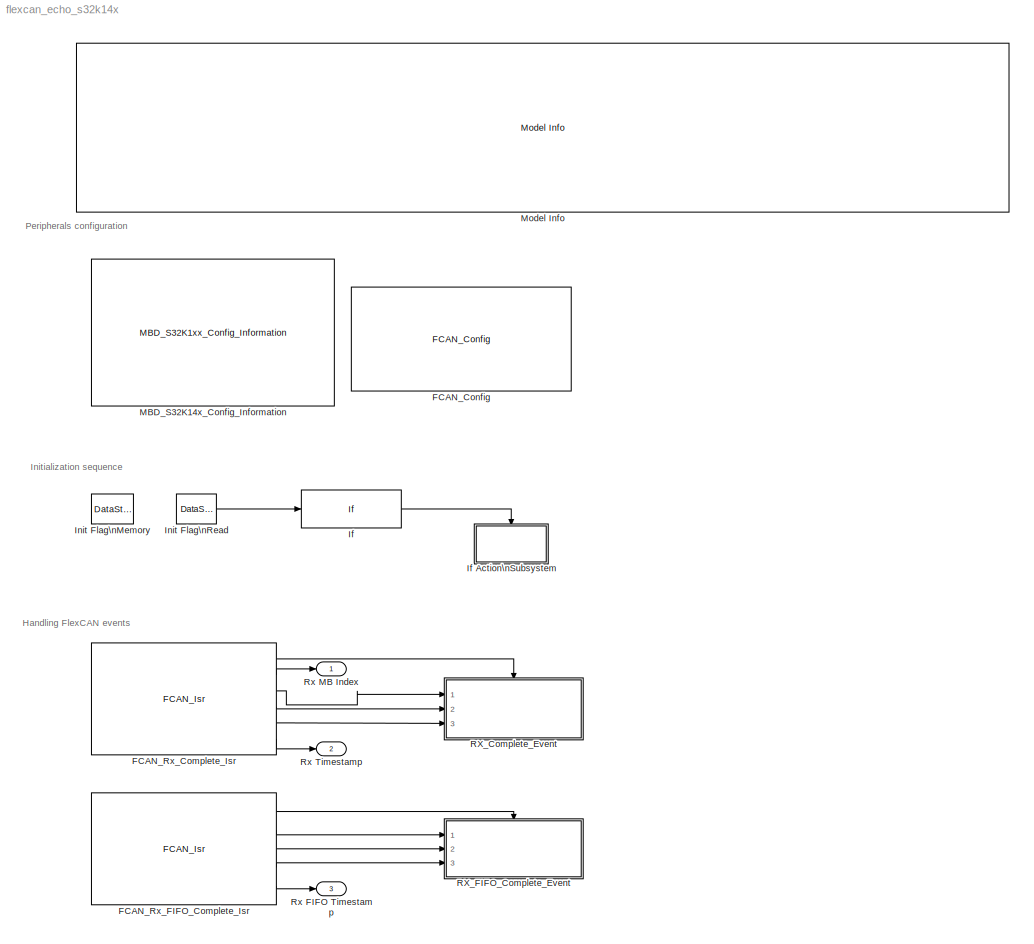
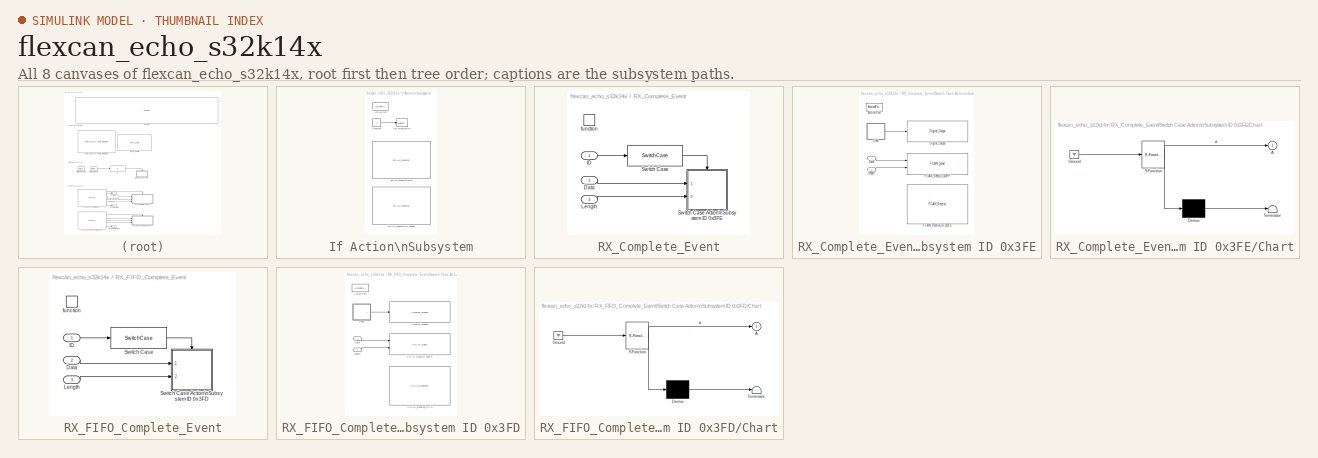
[diagram: thumbnail index - all 8 canvases of the model, root first then tree order]
MODEL flexcan_echo_s32k14x
KIND model
CONFIG InitFcn = mbd_s32k_consistency_checks(bdroot(gcs));
BLOCK [Reference] FCAN_Config  REF=mbd_s32k1xx_ec_toolbox/Communication Blocks/CAN Blocks/FCAN_Config
  MultiThreadCoSim = auto
  Ports = []
  Priority = 1
  SID = 2
  SourceBlock = mbd_s32k1xx_ec_toolbox/Communication Blocks/CAN Blocks/FCAN_Config
  SourceType = fcan_s32k_config
  bitrate = 500
  bitrate_adv_opts = off
  can_cbt_presdiv = 9
  can_cbt_propseg = 6
  can_cbt_pseg1 = 3
  can_cbt_pseg2 = 3
  can_cbt_rjw = 0
  can_clk_src = Peripheral clock
  can_fd_enable = off
  can_fifo_id_filter = {'0x3FD', '0x0', '0x0', '0x0', '0x0', '0x0', '0x0', '0x0'}
  can_fifo_id_filter_extended = off
  can_fifo_id_filter_remote = off
  can_fifo_id_format = A
  can_idfilter_extendedid = off
  can_idfilter_id1 = 0
  can_idfilter_id2 = 0
  can_idfilter_remoteframe = off
  can_idfilter_type = Match exact
  can_instance = 0
  can_match_timeout = 1
  can_max_num_mb = 16
  can_mode = Normal mode
  can_multiple_matches_en = off
  can_num_id_filters = 8
  can_num_matches = 1
  can_payload = 8
  can_payloadfilter_dlchigh = 0
  can_payloadfilter_dlclow = 0
  can_payloadfilter_enable = off
  can_payloadfilter_payload1_b0 = 0
  can_payloadfilter_payload1_b1 = 0
  can_payloadfilter_payload1_b2 = 0
  can_payloadfilter_payload1_b3 = 0
  can_payloadfilter_payload1_b4 = 0
  can_payloadfilter_payload1_b5 = 0
  can_payloadfilter_payload1_b6 = 0
  can_payloadfilter_payload1_b7 = 0
  can_payloadfilter_payload2_b0 = 0
  can_payloadfilter_payload2_b1 = 0
  can_payloadfilter_payload2_b2 = 0
  can_payloadfilter_payload2_b3 = 0
  can_payloadfilter_payload2_b4 = 0
  can_payloadfilter_payload2_b5 = 0
  can_payloadfilter_payload2_b6 = 0
  can_payloadfilter_payload2_b7 = 0
  can_payloadfilter_type = Match exact
  can_pn_enable = off
  can_presdiv = 7
  can_propseg = 7
  can_pseg1 = 6
  can_pseg2 = 3
  can_rjw = 3
  can_rx = PTE4: [CAN0_RX | CAN Rx channel]
  can_rxfifo_enable = on
  can_timeout_en = off
  can_tx = PTE5: [CAN0_TX | CAN Tx Channel]
  can_wakeup_match = off
  can_wakeup_timeout = off
  show_adv_opts = on
BLOCK [Reference] FCAN_Rx_Complete_Isr  REF=mbd_s32k1xx_ec_toolbox/Communication Blocks/CAN Blocks/FCAN_Isr
  MultiThreadCoSim = auto
  Ports = [0, 6]
  SID = 86
  SourceBlock = mbd_s32k1xx_ec_toolbox/Communication Blocks/CAN Blocks/FCAN_Isr
  SourceType = fcan_s32k_isr
  can_event = Rx Complete
  can_instance = 0
BLOCK [Reference] FCAN_Rx_FIFO_Complete_Isr  REF=mbd_s32k1xx_ec_toolbox/Communication Blocks/CAN Blocks/FCAN_Isr
  MultiThreadCoSim = auto
  Ports = [0, 5]
  SID = 438
  SourceBlock = mbd_s32k1xx_ec_toolbox/Communication Blocks/CAN Blocks/FCAN_Isr
  SourceType = fcan_s32k_isr
  can_event = Rx FIFO Complete
  can_instance = 0
BLOCK [If] If
  IfExpression = u1 == 0
  Ports = [1, 1]
  SID = 144
  ShowElse = off
BLOCK [SubSystem] If Action\nSubsystem
  Ports = [0, 0, 0, 0, 0, 0, 0, 1]
  RequestExecContextInheritance = off
  SID = 145
  TreatAsAtomicUnit = on
BLOCK [ActionPort] If Action\nSubsystem/Action Port
  SID = 147
BLOCK [Constant] If Action\nSubsystem/Constant
  OutDataTypeStr = uint32
  SID = 142
BLOCK [Reference] If Action\nSubsystem/FCAN_Receive_FIFO  REF=mbd_s32k1xx_ec_toolbox/Communication Blocks/CAN Blocks/FCAN_Receive
  MultiThreadCoSim = auto
  Ports = []
  SID = 194
  SourceBlock = mbd_s32k1xx_ec_toolbox/Communication Blocks/CAN Blocks/FCAN_Receive
  SourceType = fcan_s32k_receive
  can_extended_id = off
  can_fd_enable = off
  can_id = 0
  can_instance = 0
  can_is_remote = off
  can_mb_idx = 0
  can_mode = Non-blocking
  can_msg_mask = 0
  can_timeout_ms = 0
  can_use_rxfifo = on
  show_adv_opts = on
BLOCK [Reference] If Action\nSubsystem/FCAN_Receive_ID_0x3FE  REF=mbd_s32k1xx_ec_toolbox/Communication Blocks/CAN Blocks/FCAN_Receive
  MultiThreadCoSim = auto
  Ports = []
  SID = 197
  SourceBlock = mbd_s32k1xx_ec_toolbox/Communication Blocks/CAN Blocks/FCAN_Receive
  SourceType = fcan_s32k_receive
  can_extended_id = off
  can_fd_enable = off
  can_id = 3FE
  can_instance = 0
  can_is_remote = off
  can_mb_idx = 14
  can_mode = Non-blocking
  can_msg_mask = FFFFFFFF
  can_timeout_ms = 0
  can_use_rxfifo = off
  show_adv_opts = off
BLOCK [DataStoreWrite] If Action\nSubsystem/Init Flag\nWrite
  DataStoreName = init_flag
  Ports = [1]
  SID = 141
BLOCK [DataStoreMemory] Init Flag\nMemory
  DataStoreName = init_flag
  OutDataTypeStr = uint32
  ReadBeforeWriteMsg = warning
  SID = 138
  ShowAdditionalParam = off
  WriteAfterReadMsg = warning
  WriteAfterWriteMsg = warning
BLOCK [DataStoreRead] Init Flag\nRead
  DataStoreName = init_flag
  Ports = [0, 1]
  SID = 139
BLOCK [Reference] MBD_S32K14x_Config_Information  REF=mbd_s32k1xx_ec_toolbox/MBD_S32K1xx_Config_Information
  ADC_PcrCheckEnDis = on
  AMMCLIB_PcrCheckEnDis = on
  CMP_PcrCheckEnDis = on
  CSEc_PcrCheckEnDis = on
  ConfigParams_PcrCheckEnDis = on
  FM_PcrCheckEnDis = on
  FTM_Dual_Edge_Inputs_PcrCheckEnDis = on
  FTM_Hall_Sensor_Inputs_PcrCheckEnDis = on
  FTM_Input_Edge_Inputs_PcrCheckEnDis = on
  FTM_PWM_PcrCheckEnDis = on
  FTM_Quadrature_Inputs_PcrCheckEnDis = on
  FlexCAN_PcrCheckEnDis = on
  FlexIO_PcrCheckEnDis = on
  GPIO_InputPcrCheckEnDis = on
  GPIO_OutputPcrCheckEnDis = on
  LIN_PcrCheckEnDis = on
  LPI2C_PcrCheckEnDis = on
  LPSPI_PcrCheckEnDis = on
  LPTMR_PcrCheckEnDis = on
  LPUART_PcrCheckEnDis = on
  ModelRef_PcrCheckEnDis = on
  MultiThreadCoSim = auto
  PDB0_PcrCheckEnDis = on
  PIT_PcrCheckEnDis = on
  Ports = []
  Profile_PcrCheckEnDis = on
  RTC_PcrCheckEnDis = on
  SBC_PcrCheckEnDis = on
  SID = 458
  SourceBlock = mbd_s32k1xx_ec_toolbox/MBD_S32K1xx_Config_Information
  SourceType = MBDTBX_EC_S32K
  WDOG_PcrCheckEnDis = on
  config_params = []
  disp_str = Target : S32K144-64KB_SRAM\nPackage : 100-pin\nSystem clock : 80 MHz\nXTAL clock : External 8 MHz\nCompiler : IAR\nTarget Type : FLASH\nDownload Code after build : off\nStep Tick Interrupt Priority : 15
  ds_import_enable = on
  eDMA_PcrCheckEnDis = on
  gcc_target_assemble_opts = -mcpu=cortex-m4 -mthumb -mfloat-abi=hard -mfpu=fpv4-sp-d16 -g
  gcc_target_compile_opts = -mcpu=cortex-m4 -mthumb -mfloat-abi=hard -mfpu=fpv4-sp-d16 -O1 -g -gstrict-dwarf
  gcc_target_default_lcf = on
  gcc_target_link_opts = -mcpu=cortex-m4 -mthumb -mfloat-abi=hard -mfpu=fpv4-sp-d16
  gcc_target_user_lcf = S32K144_64_flash.ld
  ghs_target_assemble_opts = -cpu=cortexm4f -fpu=vfpv4_d16
  ghs_target_compile_opts = -cpu=cortexm4f -thumb -DARM_MATH_CM4 -fpu=vfpv4_d16 -fsingle -Ogeneral -Wundef -Wimplicit-int -Wshadow -Wtrigraphs --no_commons --gnu_asm -gnu99 -gdwarf-2 -G
  ghs_target_default_lcf = on
  ghs_target_link_opts = -cpu=cortexm4f -thumb -fpu=vfpv4_d16
  ghs_target_user_lcf = S32K144_64_flash.ld
  iar_target_assemble_opts = --cpu Cortex-M4F --thumb --fpu VFPv4_sp
  iar_target_compile_opts = --cpu=Cortex-M4F --thumb --fpu=VFPv4_sp -Ol -e --debug --dlib_config normal
  iar_target_default_lcf = on
  iar_target_link_opts = --no_exceptions --vfe --inline
  iar_target_user_lcf = S32K144_64_flash.icf
  mbdt_ver = 0
  mcu_steptick_prio = 15
  mcu_steptick_timer = LPIT Channel 0
  mcu_system_clock_freq = 80
  mcu_target_name = S32K144
  mcu_target_package = 100-LQFP
  mcu_target_sram_size = 64KB
  mcu_xtal_freq = External 8
  pil_download_enable = off
  pil_download_rate = 57600
  pil_opensda_drive = Custom
  pil_opensda_drive_custom = D
  pil_uart_instance = 0
  pil_uart_rx = PTA2: [LPUART0_RX | Receive]
  pil_uart_tx = PTA3: [LPUART0_TX | Transmit]
  rbl_com_port = Custom
  rbl_com_port_custom = COM1
  rbl_download_enable = off
  rbl_download_interface = OpenSDA
  rbl_restart_request = off
  rbl_start_delay = 5000000
  target_compiler = GCC
  target_memory = FLASH
BLOCK [Reference] Model Info  REF=simulink/Model-Wide\nUtilities/Model Info
  DisplayStringWithTags = Model Name: %<ModelName>\n\nDescription: %<Description>
  Frame = on
  HorizontalTextAlignment = Left
  LeftAlignmentValue = 0.02
  MaskDisplayString = Model Name: flexcan_echo_s32k14x\\n\\nDescription: This model tests FLEXCan communication.\\nMessages with ID 0x3FD and 0x3FE, received through MB14, respectively Rx FIFO, are send back (echoed) through MB15.\\nOn message with ID 0x3FD pin PTD16 (Green LED) is toggled, and on the one with ID 0x3FE pin PTD15 (Red LED) is toggled.\\n\\nHW prerequisite:\\n- S32K144EVB-Q100\\n- Make sure that J107 has...<+235ch>
  Ports = []
  SID = 74
  SourceBlock = simulink/Model-Wide\nUtilities/Model Info
  SourceProductBaseCode = SL
  SourceProductName = Simulink
  SourceType = CMBlock
BLOCK [SubSystem] RX_Complete_Event
  Ports = [3, 0, 0, 1]
  RTWSystemCode = Nonreusable function
  RequestExecContextInheritance = off
  SID = 160
  TreatAsAtomicUnit = on
BLOCK [Inport] RX_Complete_Event/Data
  IconDisplay = Port number
  Port = 2
  SID = 434
BLOCK [Inport] RX_Complete_Event/ID
  IconDisplay = Port number
  SID = 175
BLOCK [Inport] RX_Complete_Event/Length
  IconDisplay = Port number
  Port = 3
  SID = 456
BLOCK [SwitchCase] RX_Complete_Event/Switch Case
  CaseConditions = {hex2dec('3FE')}
  Ports = [1, 1]
  SID = 90
  ShowDefaultCase = off
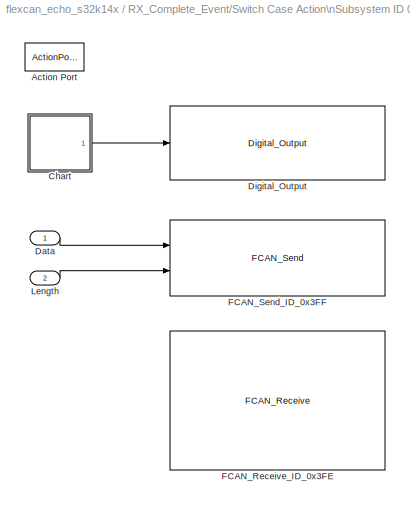
BLOCK [SubSystem] RX_Complete_Event/Switch Case Action\nSubsystem ID 0x3FE
  Ports = [2, 0, 0, 0, 0, 0, 0, 1]
  RequestExecContextInheritance = off
  SID = 198
  TreatAsAtomicUnit = on
BLOCK [ActionPort] RX_Complete_Event/Switch Case Action\nSubsystem ID 0x3FE/Action Port
  SID = 199
BLOCK [SubSystem] RX_Complete_Event/Switch Case Action\nSubsystem ID 0x3FE/Chart
  ErrorFcn = Stateflow.Translate.translate
  PermitHierarchicalResolution = ExplicitOnly
  Ports = [0, 1]
  RequestExecContextInheritance = off
  SFBlockType = Chart
  SID = 200
  TreatAsAtomicUnit = on
BLOCK [Outport] RX_Complete_Event/Switch Case Action\nSubsystem ID 0x3FE/Chart/ A
  IconDisplay = Port number
  SID = 200::6
BLOCK [Demux] RX_Complete_Event/Switch Case Action\nSubsystem ID 0x3FE/Chart/ Demux 
  Outputs = 1
  Ports = [1, 1]
  SID = 200::44
BLOCK [Ground] RX_Complete_Event/Switch Case Action\nSubsystem ID 0x3FE/Chart/ Ground 
  SID = 200::46
BLOCK [S-Function] RX_Complete_Event/Switch Case Action\nSubsystem ID 0x3FE/Chart/ SFunction 
  EnableBusSupport = off
  FunctionName = sf_sfun
  PortCounts = [1 2]
  Ports = [1, 2]
  SFcnIsStateOwnerBlock = off
  SFunctionDeploymentMode = off
  SID = 200::43
  Tag = Stateflow S-Function flexcan_echo_s32k14x 2
BLOCK [Terminator] RX_Complete_Event/Switch Case Action\nSubsystem ID 0x3FE/Chart/ Terminator 
  SID = 200::45
BLOCK [Inport] RX_Complete_Event/Switch Case Action\nSubsystem ID 0x3FE/Data
  IconDisplay = Port number
  SID = 435
BLOCK [Reference] RX_Complete_Event/Switch Case Action\nSubsystem ID 0x3FE/Digital_Output  REF=mbd_s32k1xx_ec_toolbox/GPIO Blocks/Digital_Output
  MultiThreadCoSim = auto
  Ports = [1]
  SID = 201
  SourceBlock = mbd_s32k1xx_ec_toolbox/GPIO Blocks/Digital_Output
  SourceType = gpio_s32k_output
  drive_strength = Low
  gpio_pin = PTD15: [PTD15 | Port D I/O]
  init_val = Low
BLOCK [Reference] RX_Complete_Event/Switch Case Action\nSubsystem ID 0x3FE/FCAN_Receive_ID_0x3FE  REF=mbd_s32k1xx_ec_toolbox/Communication Blocks/CAN Blocks/FCAN_Receive
  MultiThreadCoSim = auto
  Ports = []
  SID = 292
  SourceBlock = mbd_s32k1xx_ec_toolbox/Communication Blocks/CAN Blocks/FCAN_Receive
  SourceType = fcan_s32k_receive
  can_extended_id = off
  can_fd_enable = off
  can_id = 3FE
  can_instance = 0
  can_is_remote = off
  can_mb_idx = 14
  can_mode = Non-blocking
  can_msg_mask = FFFFFFFF
  can_timeout_ms = 0
  can_use_rxfifo = off
  show_adv_opts = off
BLOCK [Reference] RX_Complete_Event/Switch Case Action\nSubsystem ID 0x3FE/FCAN_Send_ID_0x3FF  REF=mbd_s32k1xx_ec_toolbox/Communication Blocks/CAN Blocks/FCAN_Send
  MultiThreadCoSim = auto
  Ports = [2]
  Priority = 2
  SID = 437
  SourceBlock = mbd_s32k1xx_ec_toolbox/Communication Blocks/CAN Blocks/FCAN_Send
  SourceType = fcan_s32k_send
  can_enable_brs = off
  can_extended_id = off
  can_fd_enable = off
  can_fd_padding = 0
  can_id = 3FF
  can_instance = 0
  can_is_remote = off
  can_mb_idx = 15
  can_mode = Non-blocking
  can_timeout_ms = 0
  show_adv_opts = off
BLOCK [Inport] RX_Complete_Event/Switch Case Action\nSubsystem ID 0x3FE/Length
  IconDisplay = Port number
  Port = 2
  SID = 457
BLOCK [TriggerPort] RX_Complete_Event/function
  Ports = []
  SID = 161
  StatesWhenEnabling = held
  TriggerType = function-call
  VariantControl = Variant
BLOCK [SubSystem] RX_FIFO_Complete_Event
  Ports = [3, 0, 0, 1]
  RTWSystemCode = Nonreusable function
  RequestExecContextInheritance = off
  SID = 215
  TreatAsAtomicUnit = on
BLOCK [Inport] RX_FIFO_Complete_Event/Data
  IconDisplay = Port number
  Port = 2
  SID = 429
BLOCK [Inport] RX_FIFO_Complete_Event/ID
  IconDisplay = Port number
  SID = 216
BLOCK [Inport] RX_FIFO_Complete_Event/Length
  IconDisplay = Port number
  Port = 3
  SID = 453
BLOCK [SwitchCase] RX_FIFO_Complete_Event/Switch Case
  CaseConditions = {hex2dec('3FD')}
  Ports = [1, 1]
  SID = 218
  ShowDefaultCase = off
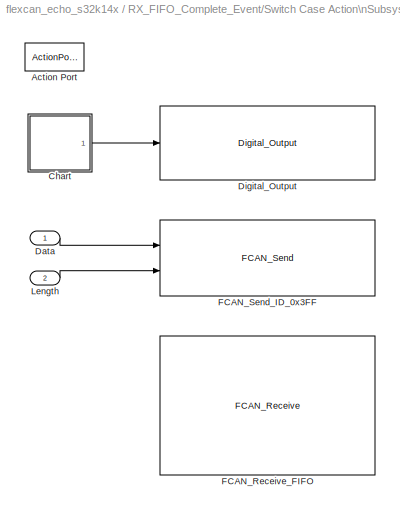
BLOCK [SubSystem] RX_FIFO_Complete_Event/Switch Case Action\nSubsystem ID 0x3FD
  Ports = [2, 0, 0, 0, 0, 0, 0, 1]
  RequestExecContextInheritance = off
  SID = 219
  TreatAsAtomicUnit = on
BLOCK [ActionPort] RX_FIFO_Complete_Event/Switch Case Action\nSubsystem ID 0x3FD/Action Port
  SID = 220
BLOCK [SubSystem] RX_FIFO_Complete_Event/Switch Case Action\nSubsystem ID 0x3FD/Chart
  ErrorFcn = Stateflow.Translate.translate
  PermitHierarchicalResolution = ExplicitOnly
  Ports = [0, 1]
  RequestExecContextInheritance = off
  SFBlockType = Chart
  SID = 221
  TreatAsAtomicUnit = on
BLOCK [Outport] RX_FIFO_Complete_Event/Switch Case Action\nSubsystem ID 0x3FD/Chart/ A
  IconDisplay = Port number
  SID = 221::6
BLOCK [Demux] RX_FIFO_Complete_Event/Switch Case Action\nSubsystem ID 0x3FD/Chart/ Demux 
  Outputs = 1
  Ports = [1, 1]
  SID = 221::44
BLOCK [Ground] RX_FIFO_Complete_Event/Switch Case Action\nSubsystem ID 0x3FD/Chart/ Ground 
  SID = 221::46
BLOCK [S-Function] RX_FIFO_Complete_Event/Switch Case Action\nSubsystem ID 0x3FD/Chart/ SFunction 
  EnableBusSupport = off
  FunctionName = sf_sfun
  PortCounts = [1 2]
  Ports = [1, 2]
  SFcnIsStateOwnerBlock = off
  SFunctionDeploymentMode = off
  SID = 221::43
  Tag = Stateflow S-Function flexcan_echo_s32k14x 3
BLOCK [Terminator] RX_FIFO_Complete_Event/Switch Case Action\nSubsystem ID 0x3FD/Chart/ Terminator 
  SID = 221::45
BLOCK [Inport] RX_FIFO_Complete_Event/Switch Case Action\nSubsystem ID 0x3FD/Data
  IconDisplay = Port number
  SID = 430
BLOCK [Reference] RX_FIFO_Complete_Event/Switch Case Action\nSubsystem ID 0x3FD/Digital_Output  REF=mbd_s32k1xx_ec_toolbox/GPIO Blocks/Digital_Output
  MultiThreadCoSim = auto
  Ports = [1]
  SID = 222
  SourceBlock = mbd_s32k1xx_ec_toolbox/GPIO Blocks/Digital_Output
  SourceType = gpio_s32k_output
  drive_strength = Low
  gpio_pin = PTD16: [PTD16 | Port D I/O]
  init_val = Low
BLOCK [Reference] RX_FIFO_Complete_Event/Switch Case Action\nSubsystem ID 0x3FD/FCAN_Receive_FIFO  REF=mbd_s32k1xx_ec_toolbox/Communication Blocks/CAN Blocks/FCAN_Receive
  MultiThreadCoSim = auto
  Ports = []
  SID = 442
  SourceBlock = mbd_s32k1xx_ec_toolbox/Communication Blocks/CAN Blocks/FCAN_Receive
  SourceType = fcan_s32k_receive
  can_extended_id = off
  can_fd_enable = off
  can_id = 7FF
  can_instance = 0
  can_is_remote = off
  can_mb_idx = 0
  can_mode = Non-blocking
  can_msg_mask = FFFFFFFF
  can_timeout_ms = 0
  can_use_rxfifo = on
  show_adv_opts = on
BLOCK [Reference] RX_FIFO_Complete_Event/Switch Case Action\nSubsystem ID 0x3FD/FCAN_Send_ID_0x3FF  REF=mbd_s32k1xx_ec_toolbox/Communication Blocks/CAN Blocks/FCAN_Send
  MultiThreadCoSim = auto
  Ports = [2]
  Priority = 2
  SID = 427
  SourceBlock = mbd_s32k1xx_ec_toolbox/Communication Blocks/CAN Blocks/FCAN_Send
  SourceType = fcan_s32k_send
  can_enable_brs = off
  can_extended_id = off
  can_fd_enable = off
  can_fd_padding = 0
  can_id = 3FF
  can_instance = 0
  can_is_remote = off
  can_mb_idx = 15
  can_mode = Non-blocking
  can_timeout_ms = 0
  show_adv_opts = off
BLOCK [Inport] RX_FIFO_Complete_Event/Switch Case Action\nSubsystem ID 0x3FD/Length
  IconDisplay = Port number
  Port = 2
  SID = 454
BLOCK [TriggerPort] RX_FIFO_Complete_Event/function
  Ports = []
  SID = 217
  StatesWhenEnabling = held
  TriggerType = function-call
  VariantControl = Variant
BLOCK [Outport] Rx FIFO Timestamp
  IconDisplay = Port number
  Port = 3
  SID = 441
BLOCK [Outport] Rx MB Index
  IconDisplay = Port number
  SID = 22
BLOCK [Outport] Rx Timestamp
  IconDisplay = Port number
  Port = 2
  SID = 125
ANNOTATION (root): Handling FlexCAN events
ANNOTATION (root): Initialization sequence
ANNOTATION (root): Peripherals configuration
LINE FCAN_Rx_Complete_Isr:1 -> RX_Complete_Event:trigger
LINE FCAN_Rx_Complete_Isr:2 -> Rx MB Index:1
LINE FCAN_Rx_Complete_Isr:3 -> RX_Complete_Event:1
LINE FCAN_Rx_Complete_Isr:4 -> RX_Complete_Event:2
LINE FCAN_Rx_Complete_Isr:5 -> RX_Complete_Event:3
LINE FCAN_Rx_Complete_Isr:6 -> Rx Timestamp:1
LINE FCAN_Rx_FIFO_Complete_Isr:1 -> RX_FIFO_Complete_Event:trigger
LINE FCAN_Rx_FIFO_Complete_Isr:2 -> RX_FIFO_Complete_Event:1
LINE FCAN_Rx_FIFO_Complete_Isr:3 -> RX_FIFO_Complete_Event:2
LINE FCAN_Rx_FIFO_Complete_Isr:4 -> RX_FIFO_Complete_Event:3
LINE FCAN_Rx_FIFO_Complete_Isr:5 -> Rx FIFO Timestamp:1
LINE If Action\nSubsystem/Constant:1 -> If Action\nSubsystem/Init Flag\nWrite:1
LINE If:1 -> If Action\nSubsystem:ifaction
LINE Init Flag\nRead:1 -> If:1
LINE RX_Complete_Event/Data:1 -> RX_Complete_Event/Switch Case Action\nSubsystem ID 0x3FE:1
LINE RX_Complete_Event/ID:1 -> RX_Complete_Event/Switch Case:1
LINE RX_Complete_Event/Length:1 -> RX_Complete_Event/Switch Case Action\nSubsystem ID 0x3FE:2
LINE RX_Complete_Event/Switch Case Action\nSubsystem ID 0x3FE/Chart/ Demux :1 -> RX_Complete_Event/Switch Case Action\nSubsystem ID 0x3FE/Chart/ Terminator :1
LINE RX_Complete_Event/Switch Case Action\nSubsystem ID 0x3FE/Chart/ Ground :1 -> RX_Complete_Event/Switch Case Action\nSubsystem ID 0x3FE/Chart/ SFunction :1
LINE RX_Complete_Event/Switch Case Action\nSubsystem ID 0x3FE/Chart/ SFunction :1 -> RX_Complete_Event/Switch Case Action\nSubsystem ID 0x3FE/Chart/ Demux :1
LINE RX_Complete_Event/Switch Case Action\nSubsystem ID 0x3FE/Chart/ SFunction :2 -> RX_Complete_Event/Switch Case Action\nSubsystem ID 0x3FE/Chart/ A:1
LINE RX_Complete_Event/Switch Case Action\nSubsystem ID 0x3FE/Chart:1 -> RX_Complete_Event/Switch Case Action\nSubsystem ID 0x3FE/Digital_Output:1
LINE RX_Complete_Event/Switch Case Action\nSubsystem ID 0x3FE/Data:1 -> RX_Complete_Event/Switch Case Action\nSubsystem ID 0x3FE/FCAN_Send_ID_0x3FF:1
LINE RX_Complete_Event/Switch Case Action\nSubsystem ID 0x3FE/Length:1 -> RX_Complete_Event/Switch Case Action\nSubsystem ID 0x3FE/FCAN_Send_ID_0x3FF:2
LINE RX_Complete_Event/Switch Case:1 -> RX_Complete_Event/Switch Case Action\nSubsystem ID 0x3FE:ifaction
LINE RX_FIFO_Complete_Event/Data:1 -> RX_FIFO_Complete_Event/Switch Case Action\nSubsystem ID 0x3FD:1
LINE RX_FIFO_Complete_Event/ID:1 -> RX_FIFO_Complete_Event/Switch Case:1
LINE RX_FIFO_Complete_Event/Length:1 -> RX_FIFO_Complete_Event/Switch Case Action\nSubsystem ID 0x3FD:2
LINE RX_FIFO_Complete_Event/Switch Case Action\nSubsystem ID 0x3FD/Chart/ Demux :1 -> RX_FIFO_Complete_Event/Switch Case Action\nSubsystem ID 0x3FD/Chart/ Terminator :1
LINE RX_FIFO_Complete_Event/Switch Case Action\nSubsystem ID 0x3FD/Chart/ Ground :1 -> RX_FIFO_Complete_Event/Switch Case Action\nSubsystem ID 0x3FD/Chart/ SFunction :1
LINE RX_FIFO_Complete_Event/Switch Case Action\nSubsystem ID 0x3FD/Chart/ SFunction :1 -> RX_FIFO_Complete_Event/Switch Case Action\nSubsystem ID 0x3FD/Chart/ Demux :1
LINE RX_FIFO_Complete_Event/Switch Case Action\nSubsystem ID 0x3FD/Chart/ SFunction :2 -> RX_FIFO_Complete_Event/Switch Case Action\nSubsystem ID 0x3FD/Chart/ A:1
LINE RX_FIFO_Complete_Event/Switch Case Action\nSubsystem ID 0x3FD/Chart:1 -> RX_FIFO_Complete_Event/Switch Case Action\nSubsystem ID 0x3FD/Digital_Output:1
LINE RX_FIFO_Complete_Event/Switch Case Action\nSubsystem ID 0x3FD/Data:1 -> RX_FIFO_Complete_Event/Switch Case Action\nSubsystem ID 0x3FD/FCAN_Send_ID_0x3FF:1
LINE RX_FIFO_Complete_Event/Switch Case Action\nSubsystem ID 0x3FD/Length:1 -> RX_FIFO_Complete_Event/Switch Case Action\nSubsystem ID 0x3FD/FCAN_Send_ID_0x3FF:2
LINE RX_FIFO_Complete_Event/Switch Case:1 -> RX_FIFO_Complete_Event/Switch Case Action\nSubsystem ID 0x3FD:ifaction
CHART RX_Complete_Event/Switch Case Action\nSubsystem ID 0x3FE/Chart states=2 transitions=3
  STATE_LABEL 'A'
  STATE_LABEL 'A1'
CHART RX_FIFO_Complete_Event/Switch Case Action\nSubsystem ID 0x3FD/Chart states=2 transitions=3
  STATE_LABEL 'A'
  STATE_LABEL 'A1'
